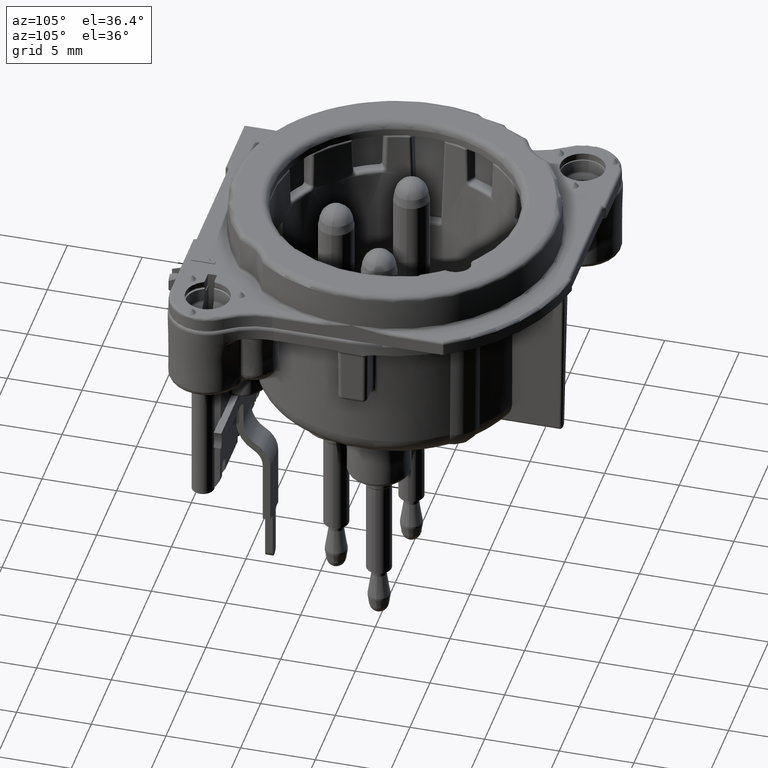
[diagram: clean part render]
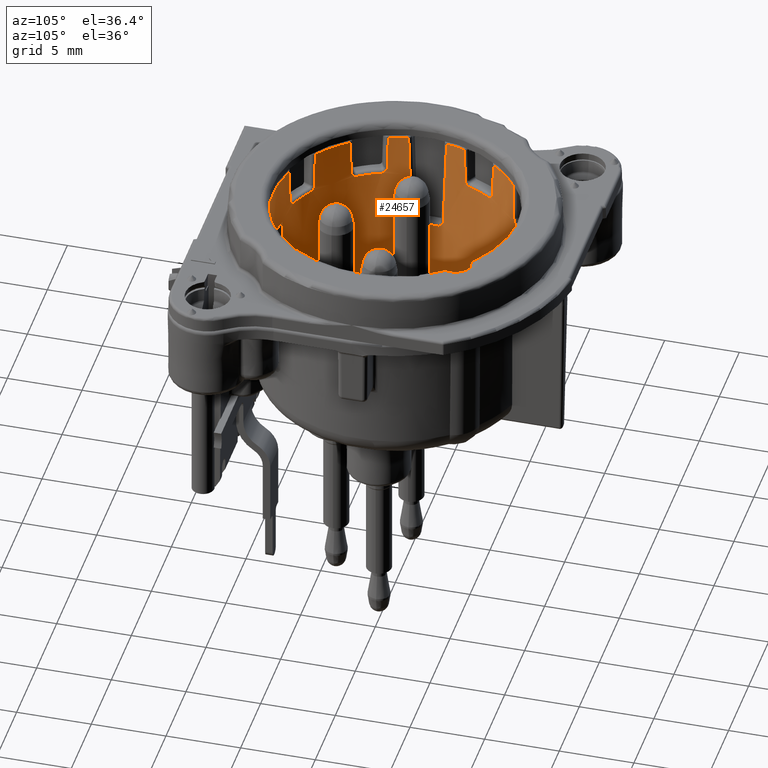
[diagram: same view with one face highlighted and labeled with its STEP entity id]
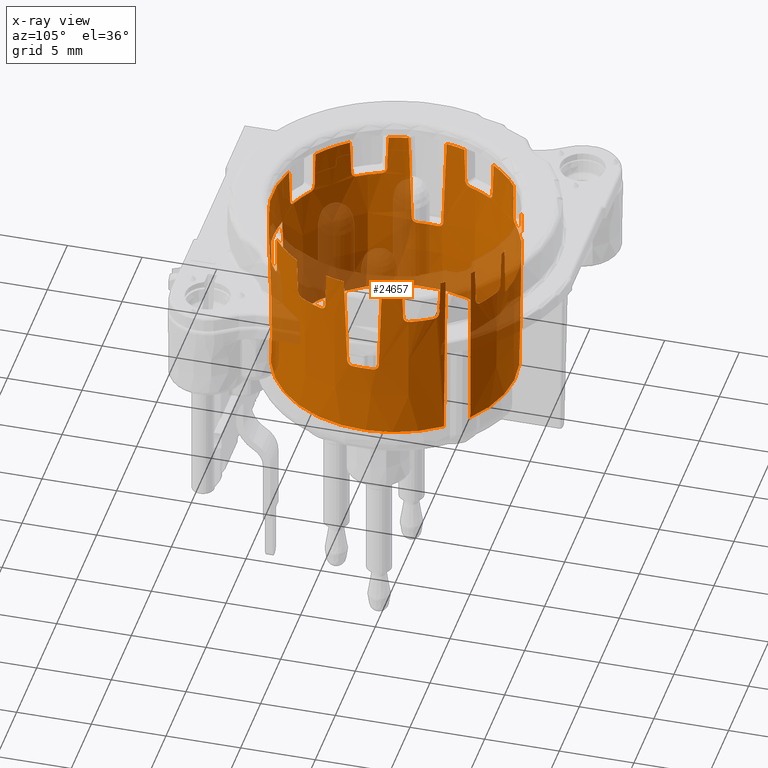
[diagram: x-ray of the same camera — body ghosted, the highlighted face saturated]
A machine part, auxiliary view. The second image highlights one B-rep face of the part: STEP entity #24657.
The next image is the same camera in x-ray: the body ghosted, the highlighted face saturated — about 28% of this face is hidden behind the body in this view.
In plain terms, the highlighted conical surface has half-angle 0.693 deg.
Its self-contained STEP definition (entity closure, byte-faithful):
#1759=CARTESIAN_POINT('',(-2.147726886727E0,7.911262696112E0,2.502419177844E0));
#1760=CARTESIAN_POINT('',(-2.134694089339E0,7.910019215594E0,2.120948605387E0));
#1761=CARTESIAN_POINT('',(-2.108898574287E0,7.907499021693E0,1.365884154310E0));
#1762=CARTESIAN_POINT('',(-2.072610928642E0,7.903804141712E0,
3.036291835128E-1));
#1763=CARTESIAN_POINT('',(-2.046831391397E0,7.901072924250E0,
-4.510701522131E-1));
#1764=CARTESIAN_POINT('',(-2.033810739779E0,7.899663537749E0,
-8.322668595602E-1));
#1766=CARTESIAN_POINT('',(-1.898556025941E0,7.932605817130E0,
-8.845588839907E-1));
#1767=CARTESIAN_POINT('',(-1.907208679409E0,7.930534927918E0,
-8.845588841260E-1));
#1768=CARTESIAN_POINT('',(-1.924159598136E0,7.926459312708E0,
-8.836292753028E-1));
#1769=CARTESIAN_POINT('',(-1.948189474690E0,7.920636378684E0,
-8.796253891082E-1));
#1770=CARTESIAN_POINT('',(-1.971832244942E0,7.914869179052E0,
-8.727308236144E-1));
#1771=CARTESIAN_POINT('',(-1.994551319258E0,7.909298957498E0,
-8.626449002430E-1));
#1772=CARTESIAN_POINT('',(-2.015519350140E0,7.904145672424E0,-8.493493612E-1));
#1773=CARTESIAN_POINT('',(-2.027968552373E0,7.901091816034E0,
-8.383395714053E-1));
#1774=CARTESIAN_POINT('',(-2.033810739779E0,7.899663537749E0,
-8.322668595602E-1));
#1776=CARTESIAN_POINT('',(2.033810804061E0,7.899663504605E0,
-8.322670087221E-1));
#1777=CARTESIAN_POINT('',(2.023434366130E0,7.902200216288E0,
-8.430561280678E-1));
#1778=CARTESIAN_POINT('',(1.999793097732E0,7.908014962790E0,
-8.615748253702E-1));
#1779=CARTESIAN_POINT('',(1.953825284455E0,7.919286031942E0,
-8.800355277777E-1));
#1780=CARTESIAN_POINT('',(1.917944996574E0,7.927965475956E0,
-8.845589410736E-1));
#1781=CARTESIAN_POINT('',(1.898539349430E0,7.932609899843E0,
-8.845589353372E-1));
#1783=CARTESIAN_POINT('',(2.033810804061E0,7.899663504605E0,
-8.322670087221E-1));
#1784=CARTESIAN_POINT('',(2.045689070542E0,7.900949236471E0,
-4.845151281118E-1));
#1785=CARTESIAN_POINT('',(2.069954194419E0,7.903527040888E0,2.258558710230E-1));
#1786=CARTESIAN_POINT('',(2.107014863392E0,7.907312838518E0,1.310744444218E0));
#1787=CARTESIAN_POINT('',(2.133890609803E0,7.909942554302E0,2.097430722971E0));
#1788=CARTESIAN_POINT('',(2.147726886722E0,7.911262696113E0,2.502419177844E0));
#1790=CARTESIAN_POINT('',(0.E0,0.E0,2.502419177844E0));
#1791=DIRECTION('',(0.E0,0.E0,-1.E0));
#1792=DIRECTION('',(2.619942776560E-1,9.650694267645E-1,0.E0));
#1793=AXIS2_PLACEMENT_3D('',#1790,#1791,#1792);
#1795=CARTESIAN_POINT('',(2.545933810107E0,7.792241606971E0,2.502419177844E0));
#1796=CARTESIAN_POINT('',(2.553251600004E0,7.786437326815E0,2.234201134450E0));
#1797=CARTESIAN_POINT('',(2.567873795898E0,7.774803583908E0,1.697765235502E0));
#1798=CARTESIAN_POINT('',(2.589766924048E0,7.757277472040E0,8.931119670170E-1));
#1799=CARTESIAN_POINT('',(2.604335382427E0,7.745542583367E0,3.566768443266E-1));
#1800=CARTESIAN_POINT('',(2.611612922869E0,7.739662603503E0,8.845938115901E-2));
#1802=CARTESIAN_POINT('',(2.611612922869E0,7.739662603503E0,8.845938115901E-2));
#1803=CARTESIAN_POINT('',(2.612771253261E0,7.738731255657E0,4.584584097996E-2));
#1804=CARTESIAN_POINT('',(2.627062462001E0,7.732894720726E0,
-3.438043262711E-2));
#1805=CARTESIAN_POINT('',(2.682220674508E0,7.712609206271E0,
-1.446261602898E-1));
#1806=CARTESIAN_POINT('',(2.765092957734E0,7.682287249914E0,
-2.305231254094E-1));
#1807=CARTESIAN_POINT('',(2.867774145682E0,7.643906519099E0,
-2.850834877480E-1));
#1808=CARTESIAN_POINT('',(2.940618989534E0,7.615846375258E0,
-2.975747206637E-1));
#1809=CARTESIAN_POINT('',(2.978839268172E0,7.600864769385E0,
-2.975808185416E-1));
#1811=CARTESIAN_POINT('',(0.E0,0.E0,-2.975808221563E-1));
#1812=DIRECTION('',(0.E0,0.E0,-1.E0));
#1813=DIRECTION('',(3.648866528597E-1,9.310519483707E-1,0.E0));
#1814=AXIS2_PLACEMENT_3D('',#1811,#1812,#1813);
#1816=CARTESIAN_POINT('',(4.398310779262E0,6.877607494120E0,
-2.975808140342E-1));
#1817=CARTESIAN_POINT('',(4.432788413489E0,6.855561132234E0,
-2.975754770384E-1));
#1818=CARTESIAN_POINT('',(4.498154726370E0,6.813223884880E0,
-2.851610027624E-1));
#1819=CARTESIAN_POINT('',(4.589536944159E0,6.752731401375E0,
-2.307721621353E-1));
#1820=CARTESIAN_POINT('',(4.662889131557E0,6.703437109890E0,
-1.448936974875E-1));
#1821=CARTESIAN_POINT('',(4.711767961166E0,6.670701909830E0,
-3.482875689446E-2));
#1822=CARTESIAN_POINT('',(4.725009677085E0,6.662492391517E0,4.565792522044E-2));
#1823=CARTESIAN_POINT('',(4.726451189648E0,6.662099017854E0,8.845937761382E-2));
#1825=CARTESIAN_POINT('',(4.726451189648E0,6.662099017854E0,8.845937761382E-2));
#1826=CARTESIAN_POINT('',(4.735485824229E0,6.659667529407E0,3.566768407809E-1));
#1827=CARTESIAN_POINT('',(4.753542419191E0,6.654778634947E0,8.931119686703E-1));
#1828=CARTESIAN_POINT('',(4.780589903458E0,6.647368458979E0,1.697765235028E0));
#1829=CARTESIAN_POINT('',(4.798596487154E0,6.642376963920E0,2.234201134449E0));
#1830=CARTESIAN_POINT('',(4.807593537421E0,6.639868417808E0,2.502419177844E0));
#1832=CARTESIAN_POINT('',(0.E0,0.E0,2.502419177844E0));
#1833=DIRECTION('',(0.E0,0.E0,-1.E0));
#1834=DIRECTION('',(5.864628337465E-1,8.099761383115E-1,0.E0));
#1835=AXIS2_PLACEMENT_3D('',#1832,#1833,#1834);
#1837=CARTESIAN_POINT('',(5.094379557597E0,6.422468773765E0,2.502419177844E0));
#1838=CARTESIAN_POINT('',(5.080125640220E0,6.415851990915E0,1.341612753502E0));
#1839=CARTESIAN_POINT('',(5.051119973441E0,6.401562506679E0,-1.072437425410E0));
#1840=CARTESIAN_POINT('',(5.006914166096E0,6.377012307001E0,-4.927301738467E0));
#1841=CARTESIAN_POINT('',(4.976237337337E0,6.357818877387E0,-7.740118584790E0));
#1842=CARTESIAN_POINT('',(4.960760106353E0,6.347501459823E0,-9.2E0));
#1844=CARTESIAN_POINT('',(4.960726346600E0,6.347434990904E0,-9.206047944609E0));
#1845=CARTESIAN_POINT('',(4.960726724299E0,6.347445012193E0,-9.205375987104E0));
#1846=CARTESIAN_POINT('',(4.960729728542E0,6.347463297586E0,-9.204032047591E0));
#1847=CARTESIAN_POINT('',(4.960740981780E0,6.347485454256E0,-9.202016042411E0));
#1848=CARTESIAN_POINT('',(4.960752981798E0,6.347496710459E0,-9.200672019816E0));
#1849=CARTESIAN_POINT('',(4.960760106353E0,6.347501459823E0,-9.2E0));
#1851=CARTESIAN_POINT('',(0.E0,0.E0,-9.206047944609E0));
#1852=DIRECTION('',(0.E0,0.E0,1.E0));
#1853=DIRECTION('',(6.157822246395E-1,7.879163990031E-1,0.E0));
#1854=AXIS2_PLACEMENT_3D('',#1851,#1852,#1853);
#1856=CARTESIAN_POINT('',(-1.618557764709E0,-7.994246285671E0,
-9.000000000709E-1));
#1857=CARTESIAN_POINT('',(-1.691058861642E0,-7.945395355699E0,
-3.668705189266E0));
#1858=CARTESIAN_POINT('',(-1.763559379617E0,-7.895321972788E0,
-6.437388268981E0));
#1859=CARTESIAN_POINT('',(-1.836059284737E0,-7.843954560843E0,
-9.206047944680E0));
#1861=CARTESIAN_POINT('',(0.E0,0.E0,-9.E-1));
#1862=DIRECTION('',(0.E0,0.E0,-1.E0));
#1863=DIRECTION('',(7.583662529537E-2,-9.971202566711E-1,0.E0));
#1864=AXIS2_PLACEMENT_3D('',#1861,#1862,#1863);
#1866=CARTESIAN_POINT('',(8.360592847335E-1,-8.012474132375E0,
-9.206047944552E0));
#1867=CARTESIAN_POINT('',(7.635591865009E-1,-8.053712907659E0,
-6.437380894166E0));
#1868=CARTESIAN_POINT('',(6.910586737785E-1,-8.093859979784E0,
-3.668698015055E0));
#1869=CARTESIAN_POINT('',(6.185577647061E-1,-8.132963125781E0,
-8.999999999433E-1));
#1871=CARTESIAN_POINT('',(0.E0,0.E0,-9.206047944610E0));
#1872=DIRECTION('',(0.E0,0.E0,1.E0));
#1873=DIRECTION('',(1.037812631284E-1,-9.946001454974E-1,0.E0));
#1874=AXIS2_PLACEMENT_3D('',#1871,#1872,#1873);
#1876=CARTESIAN_POINT('',(6.347501459823E0,4.960760106353E0,-9.2E0));
#1877=CARTESIAN_POINT('',(6.347496710459E0,4.960752981798E0,-9.200672019816E0));
#1878=CARTESIAN_POINT('',(6.347485454256E0,4.960740981780E0,-9.202016042411E0));
#1879=CARTESIAN_POINT('',(6.347463297586E0,4.960729728542E0,-9.204032047591E0));
#1880=CARTESIAN_POINT('',(6.347445012193E0,4.960726724299E0,-9.205375987104E0));
#1881=CARTESIAN_POINT('',(6.347434990904E0,4.960726346600E0,-9.206047944609E0));
#1883=CARTESIAN_POINT('',(6.347501459823E0,4.960760106353E0,-9.2E0));
#1884=CARTESIAN_POINT('',(6.357801075945E0,4.976210633267E0,-7.742637431683E0));
#1885=CARTESIAN_POINT('',(6.376974304347E0,5.006848856516E0,-4.933107222854E0));
#1886=CARTESIAN_POINT('',(6.401565247393E0,5.051123049960E0,-1.072103583633E0));
#1887=CARTESIAN_POINT('',(6.415852981862E0,5.080127774923E0,1.341786598876E0));
#1888=CARTESIAN_POINT('',(6.422468773765E0,5.094379557597E0,2.502419177844E0));
#1890=CARTESIAN_POINT('',(0.E0,0.E0,2.502419177844E0));
#1891=DIRECTION('',(0.E0,0.E0,-1.E0));
#1892=DIRECTION('',(7.834562567307E-1,6.214469356184E-1,0.E0));
#1893=AXIS2_PLACEMENT_3D('',#1890,#1891,#1892);
#1895=CARTESIAN_POINT('',(6.639868417808E0,4.807593537421E0,2.502419177844E0));
#1896=CARTESIAN_POINT('',(6.642376963920E0,4.798596487154E0,2.234201134450E0));
#1897=CARTESIAN_POINT('',(6.647368425805E0,4.780589879921E0,1.697765235510E0));
#1898=CARTESIAN_POINT('',(6.654778751056E0,4.753542501568E0,8.931119669876E-1));
#1899=CARTESIAN_POINT('',(6.659667280602E0,4.735485647706E0,3.566768443896E-1));
#1900=CARTESIAN_POINT('',(6.662098769049E0,4.726451013125E0,8.845938122207E-2));
#1902=CARTESIAN_POINT('',(6.662098769049E0,4.726451013125E0,8.845938122207E-2));
#1903=CARTESIAN_POINT('',(6.662488743218E0,4.725015456171E0,4.580865138475E-2));
#1904=CARTESIAN_POINT('',(6.670630825665E0,4.711876793615E0,
-3.448230604724E-2));
#1905=CARTESIAN_POINT('',(6.703408664796E0,4.662930963373E0,
-1.448767235566E-1));
#1906=CARTESIAN_POINT('',(6.752725475809E0,4.589545140812E0,
-2.307279435654E-1));
#1907=CARTESIAN_POINT('',(6.813033816398E0,4.498443559529E0,
-2.850417089225E-1));
#1908=CARTESIAN_POINT('',(6.855481798564E0,4.432913905169E0,
-2.975747619227E-1));
#1909=CARTESIAN_POINT('',(6.877607767284E0,4.398310953836E0,
-2.975808179629E-1));
#1911=CARTESIAN_POINT('',(0.E0,0.E0,-2.975808221563E-1));
#1912=DIRECTION('',(0.E0,0.E0,-1.E0));
#1913=DIRECTION('',(8.424581075545E-1,5.387618555685E-1,0.E0));
#1914=AXIS2_PLACEMENT_3D('',#1911,#1912,#1913);
#1916=CARTESIAN_POINT('',(7.600864421837E0,2.978839131853E0,
-2.975808140182E-1));
#1917=CARTESIAN_POINT('',(7.615805858459E0,2.940720013455E0,
-2.975754749215E-1));
#1918=CARTESIAN_POINT('',(7.643813225852E0,2.868020774958E0,
-2.851580673613E-1));
#1919=CARTESIAN_POINT('',(7.682220824253E0,2.765272830999E0,
-2.306725212345E-1));
#1920=CARTESIAN_POINT('',(7.712552265881E0,2.682378012648E0,
-1.448093769167E-1));
#1921=CARTESIAN_POINT('',(7.732831651496E0,2.627227624035E0,
-3.488176005874E-2));
#1922=CARTESIAN_POINT('',(7.738727367740E0,2.612779461730E0,4.563099901178E-2));
#1923=CARTESIAN_POINT('',(7.739662910258E0,2.611613026371E0,8.845937732906E-2));
#1925=CARTESIAN_POINT('',(7.739662910258E0,2.611613026371E0,8.845937732906E-2));
#1926=CARTESIAN_POINT('',(7.745542890122E0,2.604335485930E0,3.566768404964E-1));
#1927=CARTESIAN_POINT('',(7.757277328887E0,2.589766875747E0,8.931119688037E-1));
#1928=CARTESIAN_POINT('',(7.774803624809E0,2.567873809699E0,1.697765234991E0));
#1929=CARTESIAN_POINT('',(7.786437326815E0,2.553251600003E0,2.234201134450E0));
#1930=CARTESIAN_POINT('',(7.792241606971E0,2.545933810107E0,2.502419177844E0));
#1932=CARTESIAN_POINT('',(0.E0,0.E0,2.502419177844E0));
#1933=DIRECTION('',(0.E0,0.E0,-1.E0));
#1934=DIRECTION('',(9.505504278785E-1,3.105702562383E-1,0.E0));
#1935=AXIS2_PLACEMENT_3D('',#1932,#1933,#1934);
#1937=CARTESIAN_POINT('',(8.098767872619E0,1.269160026284E0,2.502419177844E0));
#1938=CARTESIAN_POINT('',(8.093930452087E0,1.245213390168E0,1.800866056617E0));
#1939=CARTESIAN_POINT('',(8.084060657524E0,1.197323504965E0,3.977610896523E-1));
#1940=CARTESIAN_POINT('',(8.068668452234E0,1.125498981115E0,-1.706892204036E0));
#1941=CARTESIAN_POINT('',(8.058012627174E0,1.077622816301E0,-3.109991641873E0));
#1942=CARTESIAN_POINT('',(8.052585886777E0,1.053686504068E0,-3.811540617819E0));
#1944=CARTESIAN_POINT('',(8.052585886777E0,1.053686504068E0,-3.811540617819E0));
#1945=CARTESIAN_POINT('',(8.052258355570E0,1.052228685041E0,-3.854265073380E0));
#1946=CARTESIAN_POINT('',(8.053309210601E0,1.036781627958E0,-3.934662527170E0));
#1947=CARTESIAN_POINT('',(8.059373158011E0,9.781777612739E-1,
-4.045111335414E0));
#1948=CARTESIAN_POINT('',(8.068599518514E0,8.903632723252E-1,
-4.130872424324E0));
#1949=CARTESIAN_POINT('',(8.079227237415E0,7.819226383011E-1,
-4.185067175866E0));
#1950=CARTESIAN_POINT('',(8.086048552232E0,7.043501408536E-1,
-4.197574630369E0));
#1951=CARTESIAN_POINT('',(8.089394149348E0,6.635284342692E-1,
-4.197580819728E0));
#1953=CARTESIAN_POINT('',(0.E0,0.E0,-4.197580822156E0));
#1954=DIRECTION('',(0.E0,0.E0,-1.E0));
#1955=DIRECTION('',(9.966528716866E-1,8.174994409044E-2,0.E0));
#1956=AXIS2_PLACEMENT_3D('',#1953,#1954,#1955);
#1958=CARTESIAN_POINT('',(8.089393813243E0,-6.635284067943E-1,
-4.197580815644E0));
#1959=CARTESIAN_POINT('',(8.086060139477E0,-7.041992618674E-1,
-4.197575347022E0));
#1960=CARTESIAN_POINT('',(8.079260670582E0,-7.815716548301E-1,
-4.185189781263E0));
#1961=CARTESIAN_POINT('',(8.068600396555E0,-8.903585560817E-1,
-4.130912603008E0));
#1962=CARTESIAN_POINT('',(8.059379000628E0,-9.781245362251E-1,
-4.045133233320E0));
#1963=CARTESIAN_POINT('',(8.053320436668E0,-1.036659275949E0,
-3.934992597143E0));
#1964=CARTESIAN_POINT('',(8.052258857534E0,-1.052222178114E0,
-3.854408738283E0));
#1965=CARTESIAN_POINT('',(8.052586165740E0,-1.053686540577E0,
-3.811540621148E0));
#1967=CARTESIAN_POINT('',(8.052586165740E0,-1.053686540577E0,
-3.811540621148E0));
#1968=CARTESIAN_POINT('',(8.058012906138E0,-1.077622852809E0,
-3.109991645205E0));
#1969=CARTESIAN_POINT('',(8.068668322051E0,-1.125498964077E0,
-1.706892202488E0));
#1970=CARTESIAN_POINT('',(8.084060694719E0,-1.197323509832E0,
3.977610892020E-1));
#1971=CARTESIAN_POINT('',(8.093930452087E0,-1.245213390168E0,1.800866056614E0));
#1972=CARTESIAN_POINT('',(8.098767872619E0,-1.269160026284E0,2.502419177844E0));
#1974=CARTESIAN_POINT('',(0.E0,0.E0,2.502419177844E0));
#1975=DIRECTION('',(0.E0,0.E0,-1.E0));
#1976=DIRECTION('',(9.879425786437E-1,-1.548207392530E-1,0.E0));
#1977=AXIS2_PLACEMENT_3D('',#1974,#1975,#1976);
#1979=CARTESIAN_POINT('',(7.792241606971E0,-2.545933810107E0,2.502419177844E0));
#1980=CARTESIAN_POINT('',(7.786437326815E0,-2.553251600003E0,2.234201134449E0));
#1981=CARTESIAN_POINT('',(7.774803582759E0,-2.567873795511E0,1.697765235514E0));
#1982=CARTESIAN_POINT('',(7.757277476062E0,-2.589766925406E0,
8.931119669651E-1));
#1983=CARTESIAN_POINT('',(7.745542574747E0,-2.604335379518E0,
3.566768444337E-1));
#1984=CARTESIAN_POINT('',(7.739662594883E0,-2.611612919960E0,
8.845938126682E-2));
#1986=CARTESIAN_POINT('',(7.739662594883E0,-2.611612919960E0,
8.845938126682E-2));
#1987=CARTESIAN_POINT('',(7.738730914836E0,-2.612771574915E0,
4.583136596409E-2));
#1988=CARTESIAN_POINT('',(7.732890844932E0,-2.627071790777E0,
-3.443019791685E-2));
#1989=CARTESIAN_POINT('',(7.712577504055E0,-2.682308245501E0,
-1.447960506442E-1));
#1990=CARTESIAN_POINT('',(7.682176260436E0,-2.765392580719E0,
-2.307275308780E-1));
#1991=CARTESIAN_POINT('',(7.643924046427E0,-2.867725632391E0,
-2.850347828392E-1));
#1992=CARTESIAN_POINT('',(7.615855658219E0,-2.940595101212E0,
-2.975747502273E-1));
#1993=CARTESIAN_POINT('',(7.600864727584E0,-2.978839251784E0,
-2.975808179983E-1));
#1995=CARTESIAN_POINT('',(0.E0,0.E0,-2.975808221563E-1));
#1996=DIRECTION('',(0.E0,0.E0,-1.E0));
#1997=DIRECTION('',(9.310519483707E-1,-3.648866528597E-1,0.E0));
#1998=AXIS2_PLACEMENT_3D('',#1995,#1996,#1997);
#2000=CARTESIAN_POINT('',(6.877607494120E0,-4.398310779262E0,
-2.975808140342E-1));
#2001=CARTESIAN_POINT('',(6.855561132234E0,-4.432788413489E0,
-2.975754770384E-1));
#2002=CARTESIAN_POINT('',(6.813223884881E0,-4.498154726370E0,
-2.851610027625E-1));
#2003=CARTESIAN_POINT('',(6.752731401376E0,-4.589536944158E0,
-2.307721621359E-1));
#2004=CARTESIAN_POINT('',(6.703437109890E0,-4.662889131557E0,
-1.448936974879E-1));
#2005=CARTESIAN_POINT('',(6.670701909830E0,-4.711767961166E0,
-3.482875689437E-2));
#2006=CARTESIAN_POINT('',(6.662492391517E0,-4.725009677085E0,
4.565792522050E-2));
#2007=CARTESIAN_POINT('',(6.662099017854E0,-4.726451189648E0,
8.845937761382E-2));
#2009=CARTESIAN_POINT('',(6.662099017854E0,-4.726451189648E0,
8.845937761382E-2));
#2010=CARTESIAN_POINT('',(6.659667529407E0,-4.735485824229E0,
3.566768407807E-1));
#2011=CARTESIAN_POINT('',(6.654778634947E0,-4.753542419191E0,
8.931119686698E-1));
#2012=CARTESIAN_POINT('',(6.647368458980E0,-4.780589903457E0,1.697765235027E0));
#2013=CARTESIAN_POINT('',(6.642376963919E0,-4.798596487155E0,2.234201134449E0));
#2014=CARTESIAN_POINT('',(6.639868417807E0,-4.807593537422E0,2.502419177844E0));
#2016=CARTESIAN_POINT('',(0.E0,0.E0,2.502419177844E0));
#2017=DIRECTION('',(0.E0,0.E0,-1.E0));
#2018=DIRECTION('',(8.099761383115E-1,-5.864628337465E-1,0.E0));
#2019=AXIS2_PLACEMENT_3D('',#2016,#2017,#2018);
#2021=CARTESIAN_POINT('',(4.807593537422E0,-6.639868417807E0,2.502419177844E0));
#2022=CARTESIAN_POINT('',(4.798596487156E0,-6.642376963919E0,2.234201134449E0));
#2023=CARTESIAN_POINT('',(4.780589879939E0,-6.647368425832E0,1.697765235508E0));
#2024=CARTESIAN_POINT('',(4.753542501504E0,-6.654778750964E0,
8.931119669876E-1));
#2025=CARTESIAN_POINT('',(4.735485647845E0,-6.659667280798E0,
3.566768443862E-1));
#2026=CARTESIAN_POINT('',(4.726451013264E0,-6.662098769245E0,
8.845938121923E-2));
#2028=CARTESIAN_POINT('',(4.726451013264E0,-6.662098769245E0,
8.845938121923E-2));
#2029=CARTESIAN_POINT('',(4.725015432664E0,-6.662488751185E0,
4.580796368537E-2));
#2030=CARTESIAN_POINT('',(4.711876422643E0,-6.670631066533E0,
-3.448383899811E-2));
#2031=CARTESIAN_POINT('',(4.662930024112E0,-6.703409298564E0,
-1.448780458508E-1));
#2032=CARTESIAN_POINT('',(4.589545301436E0,-6.752725362771E0,
-2.307274552816E-1));
#2033=CARTESIAN_POINT('',(4.498445442871E0,-6.813032577468E0,
-2.850409697393E-1));
#2034=CARTESIAN_POINT('',(4.432914765267E0,-6.855481255653E0,
-2.975747564514E-1));
#2035=CARTESIAN_POINT('',(4.398310955243E0,-6.877607769485E0,
-2.975808179945E-1));
#2037=CARTESIAN_POINT('',(0.E0,0.E0,-2.975808221563E-1));
#2038=DIRECTION('',(0.E0,0.E0,-1.E0));
#2039=DIRECTION('',(5.387618555685E-1,-8.424581075545E-1,0.E0));
#2040=AXIS2_PLACEMENT_3D('',#2037,#2038,#2039);
#2042=CARTESIAN_POINT('',(2.978839132334E0,-7.600864423066E0,
-2.975808140342E-1));
#2043=CARTESIAN_POINT('',(2.940737805971E0,-7.615798888698E0,
-2.975754770384E-1));
#2044=CARTESIAN_POINT('',(2.868064898659E0,-7.643796137061E0,
-2.851610027623E-1));
#2045=CARTESIAN_POINT('',(2.765412331534E0,-7.682169314557E0,
-2.307721621351E-1));
#2046=CARTESIAN_POINT('',(2.682417078020E0,-7.712538023179E0,
-1.448936974869E-1));
#2047=CARTESIAN_POINT('',(2.627203489665E0,-7.732840559172E0,
-3.482875689410E-2));
#2048=CARTESIAN_POINT('',(2.612778564501E0,-7.738727898592E0,
4.565792522059E-2));
#2049=CARTESIAN_POINT('',(2.611613018698E0,-7.739662887515E0,
8.845937761382E-2));
#2051=CARTESIAN_POINT('',(2.611613018698E0,-7.739662887515E0,
8.845937761382E-2));
#2052=CARTESIAN_POINT('',(2.604335478256E0,-7.745542867379E0,
3.566768407811E-1));
#2053=CARTESIAN_POINT('',(2.589766879328E0,-7.757277339500E0,
8.931119686708E-1));
#2054=CARTESIAN_POINT('',(2.567873808676E0,-7.774803621777E0,1.697765235029E0));
#2055=CARTESIAN_POINT('',(2.553251600003E0,-7.786437326816E0,2.234201134450E0));
#2056=CARTESIAN_POINT('',(2.545933810106E0,-7.792241606971E0,2.502419177844E0));
#2058=CARTESIAN_POINT('',(0.E0,0.E0,2.502419177844E0));
#2059=DIRECTION('',(0.E0,0.E0,-1.E0));
#2060=DIRECTION('',(3.105702562383E-1,-9.505504278785E-1,0.E0));
#2061=AXIS2_PLACEMENT_3D('',#2058,#2059,#2060);
#2063=CARTESIAN_POINT('',(-2.545933810107E0,-7.792241606971E0,
2.502419177844E0));
#2064=CARTESIAN_POINT('',(-2.553251600003E0,-7.786437326815E0,
2.234201134450E0));
#2065=CARTESIAN_POINT('',(-2.567873795672E0,-7.774803583236E0,
1.697765235510E0));
#2066=CARTESIAN_POINT('',(-2.589766924842E0,-7.757277474392E0,
8.931119669873E-1));
#2067=CARTESIAN_POINT('',(-2.604335380726E0,-7.745542578326E0,
3.566768443895E-1));
#2068=CARTESIAN_POINT('',(-2.611612921168E0,-7.739662598462E0,
8.845938122207E-2));
#2070=CARTESIAN_POINT('',(-2.611612921168E0,-7.739662598462E0,
8.845938122207E-2));
#2071=CARTESIAN_POINT('',(-2.612772216104E0,-7.738730429555E0,
4.580865138479E-2));
#2072=CARTESIAN_POINT('',(-2.627082011258E0,-7.732886824249E0,
-3.448230604717E-2));
#2073=CARTESIAN_POINT('',(-2.682369477331E0,-7.712555146223E0,
-1.448767235562E-1));
#2074=CARTESIAN_POINT('',(-2.765402719778E0,-7.682172462828E0,
-2.307279435656E-1));
#2075=CARTESIAN_POINT('',(-2.867741358156E0,-7.643918088544E0,
-2.850417089224E-1));
#2076=CARTESIAN_POINT('',(-2.940599861526E0,-7.615853782438E0,
-2.975747619227E-1));
#2077=CARTESIAN_POINT('',(-2.978839250717E0,-7.600864724861E0,
-2.975808179629E-1));
#2079=CARTESIAN_POINT('',(0.E0,0.E0,-2.975808221563E-1));
#2080=DIRECTION('',(0.E0,0.E0,-1.E0));
#2081=DIRECTION('',(-3.648866528597E-1,-9.310519483707E-1,0.E0));
#2082=AXIS2_PLACEMENT_3D('',#2079,#2080,#2081);
#2084=CARTESIAN_POINT('',(-4.398310779262E0,-6.877607494120E0,
-2.975808140342E-1));
#2085=CARTESIAN_POINT('',(-4.432788413489E0,-6.855561132234E0,
-2.975754770384E-1));
#2086=CARTESIAN_POINT('',(-4.498154726368E0,-6.813223884882E0,
-2.851610027632E-1));
#2087=CARTESIAN_POINT('',(-4.589536944158E0,-6.752731401376E0,
-2.307721621359E-1));
#2088=CARTESIAN_POINT('',(-4.662889131557E0,-6.703437109890E0,
-1.448936974875E-1));
#2089=CARTESIAN_POINT('',(-4.711767961166E0,-6.670701909830E0,
-3.482875689447E-2));
#2090=CARTESIAN_POINT('',(-4.725009677085E0,-6.662492391517E0,
4.565792522046E-2));
#2091=CARTESIAN_POINT('',(-4.726451189648E0,-6.662099017854E0,
8.845937761382E-2));
#2093=CARTESIAN_POINT('',(-4.726451189648E0,-6.662099017854E0,
8.845937761382E-2));
#2094=CARTESIAN_POINT('',(-4.735485824229E0,-6.659667529407E0,
3.566768407812E-1));
#2095=CARTESIAN_POINT('',(-4.753542419191E0,-6.654778634947E0,
8.931119686710E-1));
#2096=CARTESIAN_POINT('',(-4.780589903457E0,-6.647368458980E0,
1.697765235029E0));
#2097=CARTESIAN_POINT('',(-4.798596487155E0,-6.642376963919E0,
2.234201134450E0));
#2098=CARTESIAN_POINT('',(-4.807593537422E0,-6.639868417807E0,
2.502419177844E0));
#2100=CARTESIAN_POINT('',(0.E0,0.E0,2.502419177844E0));
#2101=DIRECTION('',(0.E0,0.E0,-1.E0));
#2102=DIRECTION('',(-5.864628337465E-1,-8.099761383115E-1,0.E0));
#2103=AXIS2_PLACEMENT_3D('',#2100,#2101,#2102);
#2105=CARTESIAN_POINT('',(-6.639868417807E0,-4.807593537422E0,
2.502419177844E0));
#2106=CARTESIAN_POINT('',(-6.642376963919E0,-4.798596487156E0,
2.234201134450E0));
#2107=CARTESIAN_POINT('',(-6.647368425806E0,-4.780589879921E0,
1.697765235510E0));
#2108=CARTESIAN_POINT('',(-6.654778751056E0,-4.753542501568E0,
8.931119669872E-1));
#2109=CARTESIAN_POINT('',(-6.659667280602E0,-4.735485647706E0,
3.566768443894E-1));
#2110=CARTESIAN_POINT('',(-6.662098769049E0,-4.726451013125E0,
8.845938122207E-2));
#2112=CARTESIAN_POINT('',(-6.662098769049E0,-4.726451013125E0,
8.845938122207E-2));
#2113=CARTESIAN_POINT('',(-6.662488743218E0,-4.725015456171E0,
4.580865138479E-2));
#2114=CARTESIAN_POINT('',(-6.670630825665E0,-4.711876793615E0,
-3.448230604714E-2));
#2115=CARTESIAN_POINT('',(-6.703408664795E0,-4.662930963373E0,
-1.448767235562E-1));
#2116=CARTESIAN_POINT('',(-6.752725475809E0,-4.589545140812E0,
-2.307279435653E-1));
#2117=CARTESIAN_POINT('',(-6.813033816398E0,-4.498443559529E0,
-2.850417089223E-1));
#2118=CARTESIAN_POINT('',(-6.855481798564E0,-4.432913905169E0,
-2.975747619227E-1));
#2119=CARTESIAN_POINT('',(-6.877607767284E0,-4.398310953836E0,
-2.975808179629E-1));
#2121=CARTESIAN_POINT('',(0.E0,0.E0,-2.975808221563E-1));
#2122=DIRECTION('',(0.E0,0.E0,-1.E0));
#2123=DIRECTION('',(-8.424581075545E-1,-5.387618555685E-1,0.E0));
#2124=AXIS2_PLACEMENT_3D('',#2121,#2122,#2123);
#2126=CARTESIAN_POINT('',(-7.600864423066E0,-2.978839132334E0,
-2.975808140342E-1));
#2127=CARTESIAN_POINT('',(-7.615798888698E0,-2.940737805971E0,
-2.975754770384E-1));
#2128=CARTESIAN_POINT('',(-7.643796137061E0,-2.868064898659E0,
-2.851610027621E-1));
#2129=CARTESIAN_POINT('',(-7.682169314557E0,-2.765412331535E0,
-2.307721621356E-1));
#2130=CARTESIAN_POINT('',(-7.712538023179E0,-2.682417078020E0,
-1.448936974871E-1));
#2131=CARTESIAN_POINT('',(-7.732840559172E0,-2.627203489665E0,
-3.482875689423E-2));
#2132=CARTESIAN_POINT('',(-7.738727898592E0,-2.612778564501E0,
4.565792522056E-2));
#2133=CARTESIAN_POINT('',(-7.739662887515E0,-2.611613018698E0,
8.845937761382E-2));
#2135=CARTESIAN_POINT('',(-7.739662887515E0,-2.611613018698E0,
8.845937761382E-2));
#2136=CARTESIAN_POINT('',(-7.745542867379E0,-2.604335478256E0,
3.566768407807E-1));
#2137=CARTESIAN_POINT('',(-7.757277339500E0,-2.589766879328E0,
8.931119686698E-1));
#2138=CARTESIAN_POINT('',(-7.774803621777E0,-2.567873808676E0,
1.697765235027E0));
#2139=CARTESIAN_POINT('',(-7.786437326816E0,-2.553251600003E0,
2.234201134449E0));
#2140=CARTESIAN_POINT('',(-7.792241606971E0,-2.545933810106E0,
2.502419177844E0));
#2142=CARTESIAN_POINT('',(0.E0,0.E0,2.502419177844E0));
#2143=DIRECTION('',(0.E0,0.E0,-1.E0));
#2144=DIRECTION('',(-9.505504278785E-1,-3.105702562383E-1,0.E0));
#2145=AXIS2_PLACEMENT_3D('',#2142,#2143,#2144);
#2147=CARTESIAN_POINT('',(-8.098767872619E0,-1.269160026284E0,
2.502419177844E0));
#2148=CARTESIAN_POINT('',(-8.093930452087E0,-1.245213390168E0,
1.800866056617E0));
#2149=CARTESIAN_POINT('',(-8.084060658135E0,-1.197323505045E0,
3.977610896445E-1));
#2150=CARTESIAN_POINT('',(-8.068668450096E0,-1.125498980835E0,
-1.706892204010E0));
#2151=CARTESIAN_POINT('',(-8.058012631756E0,-1.077622816901E0,
-3.109991641928E0));
#2152=CARTESIAN_POINT('',(-8.052585891359E0,-1.053686504668E0,
-3.811540617874E0));
#2154=CARTESIAN_POINT('',(-8.052585891359E0,-1.053686504668E0,
-3.811540617874E0));
#2155=CARTESIAN_POINT('',(-8.052258702903E0,-1.052230061691E0,
-3.854223725880E0));
#2156=CARTESIAN_POINT('',(-8.053307276754E0,-1.036807158570E0,
-3.934549733634E0));
#2157=CARTESIAN_POINT('',(-8.059356082702E0,-9.783364179721E-1,
-4.044855850637E0));
#2158=CARTESIAN_POINT('',(-8.068563671719E0,-8.907184931080E-1,
-4.130649266283E0));
#2159=CARTESIAN_POINT('',(-8.079231874819E0,-7.818824415213E-1,
-4.185113853011E0));
#2160=CARTESIAN_POINT('',(-8.086050512916E0,-7.043271901608E-1,
-4.197574598049E0));
#2161=CARTESIAN_POINT('',(-8.089394198518E0,-6.635284382894E-1,
-4.197580820325E0));
#2163=CARTESIAN_POINT('',(0.E0,0.E0,-4.197580822156E0));
#2164=DIRECTION('',(0.E0,0.E0,-1.E0));
#2165=DIRECTION('',(-9.966528716866E-1,-8.174994409042E-2,0.E0));
#2166=AXIS2_PLACEMENT_3D('',#2163,#2164,#2165);
#2168=CARTESIAN_POINT('',(-8.089393813243E0,6.635284067927E-1,
-4.197580815644E0));
#2169=CARTESIAN_POINT('',(-8.086060139477E0,7.041992618657E-1,
-4.197575347022E0));
#2170=CARTESIAN_POINT('',(-8.079260670582E0,7.815716548306E-1,
-4.185189781263E0));
#2171=CARTESIAN_POINT('',(-8.068600396555E0,8.903585560816E-1,
-4.130912603008E0));
#2172=CARTESIAN_POINT('',(-8.059379000628E0,9.781245362248E-1,
-4.045133233321E0));
#2173=CARTESIAN_POINT('',(-8.053320436668E0,1.036659275949E0,
-3.934992597143E0));
#2174=CARTESIAN_POINT('',(-8.052258857534E0,1.052222178114E0,
-3.854408738283E0));
#2175=CARTESIAN_POINT('',(-8.052586165740E0,1.053686540577E0,
-3.811540621148E0));
#2177=CARTESIAN_POINT('',(-8.052586165740E0,1.053686540577E0,
-3.811540621148E0));
#2178=CARTESIAN_POINT('',(-8.058012906138E0,1.077622852809E0,
-3.109991645205E0));
#2179=CARTESIAN_POINT('',(-8.068668322051E0,1.125498964077E0,
-1.706892202488E0));
#2180=CARTESIAN_POINT('',(-8.084060694719E0,1.197323509832E0,
3.977610892020E-1));
#2181=CARTESIAN_POINT('',(-8.093930452087E0,1.245213390168E0,1.800866056614E0));
#2182=CARTESIAN_POINT('',(-8.098767872619E0,1.269160026284E0,2.502419177844E0));
#2184=CARTESIAN_POINT('',(0.E0,0.E0,2.502419177844E0));
#2185=DIRECTION('',(0.E0,0.E0,-1.E0));
#2186=DIRECTION('',(-9.879425786437E-1,1.548207392530E-1,0.E0));
#2187=AXIS2_PLACEMENT_3D('',#2184,#2185,#2186);
#2189=CARTESIAN_POINT('',(-7.792241606971E0,2.545933810107E0,2.502419177844E0));
#2190=CARTESIAN_POINT('',(-7.786437326815E0,2.553251600004E0,2.234201134450E0));
#2191=CARTESIAN_POINT('',(-7.774803583236E0,2.567873795672E0,1.697765235510E0));
#2192=CARTESIAN_POINT('',(-7.757277474392E0,2.589766924842E0,
8.931119669876E-1));
#2193=CARTESIAN_POINT('',(-7.745542578326E0,2.604335380726E0,
3.566768443896E-1));
#2194=CARTESIAN_POINT('',(-7.739662598462E0,2.611612921168E0,
8.845938122207E-2));
#2196=CARTESIAN_POINT('',(-7.739662598462E0,2.611612921168E0,
8.845938122207E-2));
#2197=CARTESIAN_POINT('',(-7.738730429555E0,2.612772216104E0,
4.580865138465E-2));
#2198=CARTESIAN_POINT('',(-7.732886824249E0,2.627082011258E0,
-3.448230604743E-2));
#2199=CARTESIAN_POINT('',(-7.712555146222E0,2.682369477331E0,
-1.448767235564E-1));
#2200=CARTESIAN_POINT('',(-7.682172462828E0,2.765402719778E0,
-2.307279435651E-1));
#2201=CARTESIAN_POINT('',(-7.643918088544E0,2.867741358156E0,
-2.850417089224E-1));
#2202=CARTESIAN_POINT('',(-7.615853782438E0,2.940599861526E0,
-2.975747619227E-1));
#2203=CARTESIAN_POINT('',(-7.600864724861E0,2.978839250716E0,
-2.975808179628E-1));
#2205=CARTESIAN_POINT('',(0.E0,0.E0,-2.975808221563E-1));
#2206=DIRECTION('',(0.E0,0.E0,-1.E0));
#2207=DIRECTION('',(-9.310519483707E-1,3.648866528597E-1,0.E0));
#2208=AXIS2_PLACEMENT_3D('',#2205,#2206,#2207);
#2210=CARTESIAN_POINT('',(-6.877607653270E0,4.398310881012E0,
-2.975808163244E-1));
#2211=CARTESIAN_POINT('',(-6.855505196964E0,4.432876761346E0,
-2.975750002459E-1));
#2212=CARTESIAN_POINT('',(-6.813089385273E0,4.498359088116E0,
-2.850712258449E-1));
#2213=CARTESIAN_POINT('',(-6.752741806615E0,4.589520734317E0,
-2.307693502907E-1));
#2214=CARTESIAN_POINT('',(-6.703409139694E0,4.662930948442E0,
-1.448384226301E-1));
#2215=CARTESIAN_POINT('',(-6.670703399807E0,4.711765891736E0,
-3.481387121776E-2));
#2216=CARTESIAN_POINT('',(-6.662492298549E0,4.725009905175E0,
4.566425269252E-2));
#2217=CARTESIAN_POINT('',(-6.662099013232E0,4.726451186368E0,
8.845937768111E-2));
#2219=CARTESIAN_POINT('',(-6.662099013232E0,4.726451186368E0,
8.845937768111E-2));
#2220=CARTESIAN_POINT('',(-6.659667524785E0,4.735485820949E0,
3.566768408480E-1));
#2221=CARTESIAN_POINT('',(-6.654778637104E0,4.753542420721E0,
8.931119686385E-1));
#2222=CARTESIAN_POINT('',(-6.647368458363E0,4.780589903020E0,1.697765235037E0));
#2223=CARTESIAN_POINT('',(-6.642376963919E0,4.798596487155E0,2.234201134449E0));
#2224=CARTESIAN_POINT('',(-6.639868417807E0,4.807593537421E0,2.502419177844E0));
#2226=CARTESIAN_POINT('',(0.E0,0.E0,2.502419177844E0));
#2227=DIRECTION('',(0.E0,0.E0,-1.E0));
#2228=DIRECTION('',(-8.099761383115E-1,5.864628337465E-1,0.E0));
#2229=AXIS2_PLACEMENT_3D('',#2226,#2227,#2228);
#2231=CARTESIAN_POINT('',(-4.807593537422E0,6.639868417807E0,2.502419177844E0));
#2232=CARTESIAN_POINT('',(-4.798596487156E0,6.642376963919E0,2.234201134449E0));
#2233=CARTESIAN_POINT('',(-4.780589879921E0,6.647368425806E0,1.697765235509E0));
#2234=CARTESIAN_POINT('',(-4.753542501568E0,6.654778751056E0,
8.931119669869E-1));
#2235=CARTESIAN_POINT('',(-4.735485647706E0,6.659667280602E0,
3.566768443893E-1));
#2236=CARTESIAN_POINT('',(-4.726451013125E0,6.662098769049E0,
8.845938122207E-2));
#2238=CARTESIAN_POINT('',(-4.726451013125E0,6.662098769049E0,
8.845938122207E-2));
#2239=CARTESIAN_POINT('',(-4.725015456171E0,6.662488743218E0,
4.580865138484E-2));
#2240=CARTESIAN_POINT('',(-4.711876793615E0,6.670630825665E0,
-3.448230604701E-2));
#2241=CARTESIAN_POINT('',(-4.662930963373E0,6.703408664795E0,
-1.448767235561E-1));
#2242=CARTESIAN_POINT('',(-4.589545140812E0,6.752725475809E0,
-2.307279435653E-1));
#2243=CARTESIAN_POINT('',(-4.498443559529E0,6.813033816398E0,
-2.850417089225E-1));
#2244=CARTESIAN_POINT('',(-4.432913905169E0,6.855481798564E0,
-2.975747619227E-1));
#2245=CARTESIAN_POINT('',(-4.398310953836E0,6.877607767284E0,
-2.975808179629E-1));
#2247=CARTESIAN_POINT('',(0.E0,0.E0,-2.975808221563E-1));
#2248=DIRECTION('',(0.E0,0.E0,-1.E0));
#2249=DIRECTION('',(-5.387618555685E-1,8.424581075545E-1,0.E0));
#2250=AXIS2_PLACEMENT_3D('',#2247,#2248,#2249);
#2252=CARTESIAN_POINT('',(-2.978839130731E0,7.600864418976E0,
-2.975808139809E-1));
#2253=CARTESIAN_POINT('',(-2.940774600130E0,7.615784452663E0,
-2.975754920117E-1));
#2254=CARTESIAN_POINT('',(-2.868169375956E0,7.643756182718E0,
-2.851933095859E-1));
#2255=CARTESIAN_POINT('',(-2.765581273550E0,7.682106794304E0,
-2.308608970141E-1));
#2256=CARTESIAN_POINT('',(-2.682669296307E0,7.712445812011E0,
-1.452891264535E-1));
#2257=CARTESIAN_POINT('',(-2.627120428576E0,7.732870598667E0,
-3.470516158828E-2));
#2258=CARTESIAN_POINT('',(-2.612777613600E0,7.738729405591E0,
4.571620950814E-2));
#2259=CARTESIAN_POINT('',(-2.611613052272E0,7.739662987017E0,
8.845937636904E-2));
#2261=CARTESIAN_POINT('',(-2.611613052272E0,7.739662987017E0,
8.845937636904E-2));
#2262=CARTESIAN_POINT('',(-2.604335511830E0,7.745542966881E0,
3.566768395362E-1));
#2263=CARTESIAN_POINT('',(-2.589766863660E0,7.757277293066E0,
8.931119692513E-1));
#2264=CARTESIAN_POINT('',(-2.567873813152E0,7.774803635044E0,1.697765234862E0));
#2265=CARTESIAN_POINT('',(-2.553251600004E0,7.786437326815E0,2.234201134449E0));
#2266=CARTESIAN_POINT('',(-2.545933810107E0,7.792241606971E0,2.502419177844E0));
#2268=CARTESIAN_POINT('',(0.E0,0.E0,2.502419177844E0));
#2269=DIRECTION('',(0.E0,0.E0,-1.E0));
#2270=DIRECTION('',(-3.105702562383E-1,9.505504278785E-1,0.E0));
#2271=AXIS2_PLACEMENT_3D('',#2268,#2269,#2270);
#2293=CARTESIAN_POINT('',(0.E0,-8.393286066166E-14,-8.845588827424E-1));
#2294=DIRECTION('',(0.E0,0.E0,1.E0));
#2295=DIRECTION('',(2.327599686550E-1,9.725342137898E-1,0.E0));
#2296=AXIS2_PLACEMENT_3D('',#2293,#2294,#2295);
#2347=CARTESIAN_POINT('',(-2.033810739779E0,7.899663537749E0,
-8.322668595602E-1));
#19549=CARTESIAN_POINT('',(6.185577647076E-1,-8.132963125783E0,-9.E-1));
#19550=CARTESIAN_POINT('',(-1.618557764708E0,-7.994246285669E0,-9.E-1));
#19551=VERTEX_POINT('',#19549);
#19552=VERTEX_POINT('',#19550);
#20523=CARTESIAN_POINT('',(4.960726346600E0,6.347434990904E0,
-9.206047944609E0));
#20524=CARTESIAN_POINT('',(-1.836059284735E0,-7.843954560841E0,
-9.206047944609E0));
#20525=VERTEX_POINT('',#20523);
#20526=VERTEX_POINT('',#20524);
#20531=VERTEX_POINT('',#1849);
#20532=CARTESIAN_POINT('',(6.347501459823E0,4.960760106353E0,-9.2E0));
#20533=VERTEX_POINT('',#20532);
#20534=VERTEX_POINT('',#1881);
#20539=CARTESIAN_POINT('',(8.360592847350E-1,-8.012474132377E0,
-9.206047944610E0));
#20540=VERTEX_POINT('',#20539);
#20959=VERTEX_POINT('',#2347);
#20968=VERTEX_POINT('',#1759);
#20970=CARTESIAN_POINT('',(-2.545933810107E0,7.792241606970E0,
2.502419177844E0));
#20971=VERTEX_POINT('',#20970);
#20974=VERTEX_POINT('',#2261);
#20976=VERTEX_POINT('',#2252);
#20979=CARTESIAN_POINT('',(-4.398311140590E0,6.877608059367E0,
-2.975808221563E-1));
#20980=VERTEX_POINT('',#20979);
#20982=VERTEX_POINT('',#2238);
#20984=VERTEX_POINT('',#2231);
#20985=CARTESIAN_POINT('',(-6.639868417807E0,4.807593537421E0,
2.502419177844E0));
#20986=VERTEX_POINT('',#20985);
#20989=VERTEX_POINT('',#2219);
#20991=VERTEX_POINT('',#2210);
#20994=CARTESIAN_POINT('',(-7.600865047629E0,2.978839377245E0,
-2.975808221563E-1));
#20995=VERTEX_POINT('',#20994);
#20997=VERTEX_POINT('',#2196);
#20999=VERTEX_POINT('',#2189);
#21000=CARTESIAN_POINT('',(-8.098767872617E0,1.269160026283E0,
2.502419177844E0));
#21001=VERTEX_POINT('',#21000);
#21004=VERTEX_POINT('',#2177);
#21006=VERTEX_POINT('',#2168);
#21009=CARTESIAN_POINT('',(-8.089394349434E0,-6.635284506555E-1,
-4.197580822156E0));
#21010=VERTEX_POINT('',#21009);
#21012=VERTEX_POINT('',#2154);
#21014=VERTEX_POINT('',#2147);
#21015=CARTESIAN_POINT('',(-4.807593537421E0,-6.639868417807E0,
2.502419177844E0));
#21016=CARTESIAN_POINT('',(-6.639868417807E0,-4.807593537421E0,
2.502419177844E0));
#21017=VERTEX_POINT('',#21015);
#21018=VERTEX_POINT('',#21016);
#21021=VERTEX_POINT('',#1825);
#21022=VERTEX_POINT('',#1830);
#21024=VERTEX_POINT('',#1816);
#21027=CARTESIAN_POINT('',(2.978839377245E0,7.600865047629E0,
-2.975808221563E-1));
#21028=VERTEX_POINT('',#21027);
#21030=VERTEX_POINT('',#1802);
#21032=VERTEX_POINT('',#1795);
#21033=CARTESIAN_POINT('',(-7.792241606970E0,-2.545933810107E0,
2.502419177844E0));
#21034=VERTEX_POINT('',#21033);
#21037=VERTEX_POINT('',#1783);
#21038=VERTEX_POINT('',#1788);
#21039=VERTEX_POINT('',#1837);
#21040=CARTESIAN_POINT('',(6.422468773765E0,5.094379557597E0,2.502419177844E0));
#21041=CARTESIAN_POINT('',(6.639868417807E0,4.807593537421E0,2.502419177844E0));
#21042=VERTEX_POINT('',#21040);
#21043=VERTEX_POINT('',#21041);
#21046=VERTEX_POINT('',#1900);
#21048=VERTEX_POINT('',#1909);
#21051=CARTESIAN_POINT('',(7.600865047629E0,2.978839377245E0,
-2.975808221563E-1));
#21052=VERTEX_POINT('',#21051);
#21054=VERTEX_POINT('',#1923);
#21056=VERTEX_POINT('',#1930);
#21057=CARTESIAN_POINT('',(8.098767872617E0,1.269160026283E0,2.502419177844E0));
#21058=VERTEX_POINT('',#21057);
#21061=VERTEX_POINT('',#1942);
#21063=VERTEX_POINT('',#1951);
#21066=CARTESIAN_POINT('',(8.089394349434E0,-6.635284506557E-1,
-4.197580822156E0));
#21067=VERTEX_POINT('',#21066);
#21069=VERTEX_POINT('',#1965);
#21071=VERTEX_POINT('',#1972);
#21072=CARTESIAN_POINT('',(7.792241606970E0,-2.545933810107E0,
2.502419177844E0));
#21073=VERTEX_POINT('',#21072);
#21076=VERTEX_POINT('',#1984);
#21078=VERTEX_POINT('',#1993);
#21081=CARTESIAN_POINT('',(6.877608059367E0,-4.398311140590E0,
-2.975808221563E-1));
#21082=VERTEX_POINT('',#21081);
#21084=VERTEX_POINT('',#2007);
#21086=VERTEX_POINT('',#2014);
#21087=CARTESIAN_POINT('',(4.807593537421E0,-6.639868417807E0,
2.502419177844E0));
#21088=VERTEX_POINT('',#21087);
#21091=VERTEX_POINT('',#2026);
#21093=VERTEX_POINT('',#2035);
#21096=CARTESIAN_POINT('',(2.978839377245E0,-7.600865047629E0,
-2.975808221563E-1));
#21097=VERTEX_POINT('',#21096);
#21099=VERTEX_POINT('',#2049);
#21101=VERTEX_POINT('',#2056);
#21102=CARTESIAN_POINT('',(-2.545933810107E0,-7.792241606970E0,
2.502419177844E0));
#21103=VERTEX_POINT('',#21102);
#21106=VERTEX_POINT('',#2068);
#21108=VERTEX_POINT('',#2077);
#21111=CARTESIAN_POINT('',(-4.398311140590E0,-6.877608059367E0,
-2.975808221563E-1));
#21112=VERTEX_POINT('',#21111);
#21114=VERTEX_POINT('',#2091);
#21118=VERTEX_POINT('',#2110);
#21120=VERTEX_POINT('',#2119);
#21123=CARTESIAN_POINT('',(-7.600865047629E0,-2.978839377245E0,
-2.975808221563E-1));
#21124=VERTEX_POINT('',#21123);
#21126=VERTEX_POINT('',#2133);
#21128=CARTESIAN_POINT('',(1.898538898457E0,7.932609914107E0,
-8.845588827424E-1));
#21129=CARTESIAN_POINT('',(-1.898556002713E0,7.932605820467E0,
-8.845588827424E-1));
#21130=VERTEX_POINT('',#21128);
#21131=VERTEX_POINT('',#21129);
#24504=CARTESIAN_POINT('',(0.E0,0.E0,-3.351814383383E0));
#24505=DIRECTION('',(0.E0,0.E0,1.E0));
#24506=DIRECTION('',(0.E0,1.E0,0.E0));
#24507=AXIS2_PLACEMENT_3D('',#24504,#24505,#24506);
#24508=CONICAL_SURFACE('',#24507,8.126792567943E0,6.930603027112E-1);
#24510=ORIENTED_EDGE('',*,*,#24509,.T.);
#24512=ORIENTED_EDGE('',*,*,#24511,.F.);
#24514=ORIENTED_EDGE('',*,*,#24513,.F.);
#24516=ORIENTED_EDGE('',*,*,#24515,.F.);
#24518=ORIENTED_EDGE('',*,*,#24517,.T.);
#24520=ORIENTED_EDGE('',*,*,#24519,.T.);
#24522=ORIENTED_EDGE('',*,*,#24521,.T.);
#24524=ORIENTED_EDGE('',*,*,#24523,.T.);
#24526=ORIENTED_EDGE('',*,*,#24525,.T.);
#24528=ORIENTED_EDGE('',*,*,#24527,.T.);
#24530=ORIENTED_EDGE('',*,*,#24529,.T.);
#24531=ORIENTED_EDGE('',*,*,#24497,.T.);
#24532=ORIENTED_EDGE('',*,*,#24479,.T.);
#24534=ORIENTED_EDGE('',*,*,#24533,.F.);
#24536=ORIENTED_EDGE('',*,*,#24535,.T.);
#24538=ORIENTED_EDGE('',*,*,#24537,.F.);
#24540=ORIENTED_EDGE('',*,*,#24539,.F.);
#24541=ORIENTED_EDGE('',*,*,#22804,.F.);
#24543=ORIENTED_EDGE('',*,*,#24542,.T.);
#24545=ORIENTED_EDGE('',*,*,#24544,.F.);
#24546=ORIENTED_EDGE('',*,*,#24475,.T.);
#24548=ORIENTED_EDGE('',*,*,#24547,.T.);
#24550=ORIENTED_EDGE('',*,*,#24549,.T.);
#24552=ORIENTED_EDGE('',*,*,#24551,.T.);
#24554=ORIENTED_EDGE('',*,*,#24553,.T.);
#24556=ORIENTED_EDGE('',*,*,#24555,.T.);
#24558=ORIENTED_EDGE('',*,*,#24557,.T.);
#24560=ORIENTED_EDGE('',*,*,#24559,.T.);
#24561=ORIENTED_EDGE('',*,*,#22298,.T.);
#24563=ORIENTED_EDGE('',*,*,#24562,.T.);
#24565=ORIENTED_EDGE('',*,*,#24564,.T.);
#24567=ORIENTED_EDGE('',*,*,#24566,.T.);
#24569=ORIENTED_EDGE('',*,*,#24568,.T.);
#24571=ORIENTED_EDGE('',*,*,#24570,.T.);
#24573=ORIENTED_EDGE('',*,*,#24572,.T.);
#24575=ORIENTED_EDGE('',*,*,#24574,.T.);
#24577=ORIENTED_EDGE('',*,*,#24576,.T.);
#24579=ORIENTED_EDGE('',*,*,#24578,.T.);
#24581=ORIENTED_EDGE('',*,*,#24580,.T.);
#24583=ORIENTED_EDGE('',*,*,#24582,.T.);
#24585=ORIENTED_EDGE('',*,*,#24584,.T.);
#24587=ORIENTED_EDGE('',*,*,#24586,.T.);
#24589=ORIENTED_EDGE('',*,*,#24588,.T.);
#24591=ORIENTED_EDGE('',*,*,#24590,.T.);
#24593=ORIENTED_EDGE('',*,*,#24592,.T.);
#24595=ORIENTED_EDGE('',*,*,#24594,.T.);
#24597=ORIENTED_EDGE('',*,*,#24596,.T.);
#24599=ORIENTED_EDGE('',*,*,#24598,.T.);
#24601=ORIENTED_EDGE('',*,*,#24600,.T.);
#24603=ORIENTED_EDGE('',*,*,#24602,.T.);
#24605=ORIENTED_EDGE('',*,*,#24604,.T.);
#24607=ORIENTED_EDGE('',*,*,#24606,.T.);
#24609=ORIENTED_EDGE('',*,*,#24608,.T.);
#24611=ORIENTED_EDGE('',*,*,#24610,.T.);
#24613=ORIENTED_EDGE('',*,*,#24612,.T.);
#24615=ORIENTED_EDGE('',*,*,#24614,.T.);
#24617=ORIENTED_EDGE('',*,*,#24616,.T.);
#24619=ORIENTED_EDGE('',*,*,#24618,.T.);
#24621=ORIENTED_EDGE('',*,*,#24620,.T.);
#24623=ORIENTED_EDGE('',*,*,#24622,.T.);
#24625=ORIENTED_EDGE('',*,*,#24624,.T.);
#24627=ORIENTED_EDGE('',*,*,#24626,.T.);
#24628=ORIENTED_EDGE('',*,*,#22372,.T.);
#24630=ORIENTED_EDGE('',*,*,#24629,.T.);
#24632=ORIENTED_EDGE('',*,*,#24631,.T.);
#24634=ORIENTED_EDGE('',*,*,#24633,.T.);
#24636=ORIENTED_EDGE('',*,*,#24635,.T.);
#24638=ORIENTED_EDGE('',*,*,#24637,.T.);
#24640=ORIENTED_EDGE('',*,*,#24639,.T.);
#24642=ORIENTED_EDGE('',*,*,#24641,.T.);
#24644=ORIENTED_EDGE('',*,*,#24643,.T.);
#24646=ORIENTED_EDGE('',*,*,#24645,.T.);
#24648=ORIENTED_EDGE('',*,*,#24647,.T.);
#24650=ORIENTED_EDGE('',*,*,#24649,.T.);
#24652=ORIENTED_EDGE('',*,*,#24651,.T.);
#24654=ORIENTED_EDGE('',*,*,#24653,.T.);
#24655=EDGE_LOOP('',(#24510,#24512,#24514,#24516,#24518,#24520,#24522,#24524,
#24526,#24528,#24530,#24531,#24532,#24534,#24536,#24538,#24540,#24541,#24543,
#24545,#24546,#24548,#24550,#24552,#24554,#24556,#24558,#24560,#24561,#24563,
#24565,#24567,#24569,#24571,#24573,#24575,#24577,#24579,#24581,#24583,#24585,
#24587,#24589,#24591,#24593,#24595,#24597,#24599,#24601,#24603,#24605,#24607,
#24609,#24611,#24613,#24615,#24617,#24619,#24621,#24623,#24625,#24627,#24628,
#24630,#24632,#24634,#24636,#24638,#24640,#24642,#24644,#24646,#24648,#24650,
#24652,#24654));
#24656=FACE_OUTER_BOUND('',#24655,.F.);
#24657=ADVANCED_FACE('',(#24656),#24508,.F.);
#1765=B_SPLINE_CURVE_WITH_KNOTS('',3,(#1759,#1760,#1761,#1762,#1763,#1764),
.UNSPECIFIED.,.F.,.F.,(4,1,1,4),(0.E0,3.333333333333E-1,6.666666666667E-1,1.E0),
.UNSPECIFIED.);
#1775=B_SPLINE_CURVE_WITH_KNOTS('',3,(#1766,#1767,#1768,#1769,#1770,#1771,#1772,
#1773,#1774),.UNSPECIFIED.,.F.,.F.,(4,1,1,1,1,1,4),(0.E0,1.666666666667E-1,
3.333333333333E-1,5.E-1,6.666666666667E-1,8.333333333333E-1,1.E0),
.UNSPECIFIED.);
#1782=B_SPLINE_CURVE_WITH_KNOTS('',3,(#1776,#1777,#1778,#1779,#1780,#1781),
.UNSPECIFIED.,.F.,.F.,(4,1,1,4),(0.E0,3.333333333333E-1,6.666666666667E-1,1.E0),
.UNSPECIFIED.);
#1789=B_SPLINE_CURVE_WITH_KNOTS('',3,(#1783,#1784,#1785,#1786,#1787,#1788),
.UNSPECIFIED.,.F.,.F.,(4,1,1,4),(0.E0,3.333333333333E-1,6.666666666667E-1,1.E0),
.UNSPECIFIED.);
#1794=CIRCLE('',#1793,8.197609909409E0);
#1801=B_SPLINE_CURVE_WITH_KNOTS('',3,(#1795,#1796,#1797,#1798,#1799,#1800),
.UNSPECIFIED.,.F.,.F.,(4,1,1,4),(0.E0,3.333333333333E-1,6.666666666667E-1,1.E0),
.UNSPECIFIED.);
#1810=B_SPLINE_CURVE_WITH_KNOTS('',3,(#1802,#1803,#1804,#1805,#1806,#1807,#1808,
#1809),.UNSPECIFIED.,.F.,.F.,(4,1,1,1,1,4),(0.E0,2.E-1,4.E-1,6.E-1,8.E-1,1.E0),
.UNSPECIFIED.);
#1815=CIRCLE('',#1814,8.163738941667E0);
#1824=B_SPLINE_CURVE_WITH_KNOTS('',3,(#1816,#1817,#1818,#1819,#1820,#1821,#1822,
#1823),.UNSPECIFIED.,.F.,.F.,(4,1,1,1,1,4),(0.E0,2.E-1,4.E-1,6.E-1,8.E-1,1.E0),
.UNSPECIFIED.);
#1831=B_SPLINE_CURVE_WITH_KNOTS('',3,(#1825,#1826,#1827,#1828,#1829,#1830),
.UNSPECIFIED.,.F.,.F.,(4,1,1,4),(0.E0,3.333333333333E-1,6.666666666667E-1,1.E0),
.UNSPECIFIED.);
#1836=CIRCLE('',#1835,8.197609909409E0);
#1843=B_SPLINE_CURVE_WITH_KNOTS('',3,(#1837,#1838,#1839,#1840,#1841,#1842),
.UNSPECIFIED.,.F.,.F.,(4,1,1,4),(0.E0,3.333333333333E-1,6.666666666667E-1,1.E0),
.UNSPECIFIED.);
#1850=B_SPLINE_CURVE_WITH_KNOTS('',3,(#1844,#1845,#1846,#1847,#1848,#1849),
.UNSPECIFIED.,.T.,.F.,(4,1,1,4),(0.E0,3.333333333333E-1,6.666666666667E-1,1.E0),
.UNSPECIFIED.);
#1855=CIRCLE('',#1854,8.055975226477E0);
#1860=B_SPLINE_CURVE_WITH_KNOTS('',3,(#1856,#1857,#1858,#1859),.UNSPECIFIED.,
.F.,.F.,(4,4),(0.E0,1.E0),.UNSPECIFIED.);
#1865=CIRCLE('',#1864,8.156451612903E0);
#1870=B_SPLINE_CURVE_WITH_KNOTS('',3,(#1866,#1867,#1868,#1869),.UNSPECIFIED.,
.F.,.F.,(4,4),(0.E0,1.E0),.UNSPECIFIED.);
#1875=CIRCLE('',#1874,8.055975226476E0);
#1882=B_SPLINE_CURVE_WITH_KNOTS('',3,(#1876,#1877,#1878,#1879,#1880,#1881),
.UNSPECIFIED.,.T.,.F.,(4,1,1,4),(0.E0,3.333333333333E-1,6.666666666667E-1,1.E0),
.UNSPECIFIED.);
#1889=B_SPLINE_CURVE_WITH_KNOTS('',3,(#1883,#1884,#1885,#1886,#1887,#1888),
.UNSPECIFIED.,.F.,.F.,(4,1,1,4),(0.E0,3.333333333333E-1,6.666666666667E-1,1.E0),
.UNSPECIFIED.);
#1894=CIRCLE('',#1893,8.197609909409E0);
#1901=B_SPLINE_CURVE_WITH_KNOTS('',3,(#1895,#1896,#1897,#1898,#1899,#1900),
.UNSPECIFIED.,.F.,.F.,(4,1,1,4),(0.E0,3.333333333333E-1,6.666666666667E-1,1.E0),
.UNSPECIFIED.);
#1910=B_SPLINE_CURVE_WITH_KNOTS('',3,(#1902,#1903,#1904,#1905,#1906,#1907,#1908,
#1909),.UNSPECIFIED.,.F.,.F.,(4,1,1,1,1,4),(0.E0,2.E-1,4.E-1,6.E-1,8.E-1,1.E0),
.UNSPECIFIED.);
#1915=CIRCLE('',#1914,8.163738941667E0);
#1924=B_SPLINE_CURVE_WITH_KNOTS('',3,(#1916,#1917,#1918,#1919,#1920,#1921,#1922,
#1923),.UNSPECIFIED.,.F.,.F.,(4,1,1,1,1,4),(0.E0,2.E-1,4.E-1,6.E-1,8.E-1,1.E0),
.UNSPECIFIED.);
#1931=B_SPLINE_CURVE_WITH_KNOTS('',3,(#1925,#1926,#1927,#1928,#1929,#1930),
.UNSPECIFIED.,.F.,.F.,(4,1,1,4),(0.E0,3.333333333333E-1,6.666666666667E-1,1.E0),
.UNSPECIFIED.);
#1936=CIRCLE('',#1935,8.197609909409E0);
#1943=B_SPLINE_CURVE_WITH_KNOTS('',3,(#1937,#1938,#1939,#1940,#1941,#1942),
.UNSPECIFIED.,.F.,.F.,(4,1,1,4),(0.E0,3.333333333333E-1,6.666666666667E-1,1.E0),
.UNSPECIFIED.);
#1952=B_SPLINE_CURVE_WITH_KNOTS('',3,(#1944,#1945,#1946,#1947,#1948,#1949,#1950,
#1951),.UNSPECIFIED.,.F.,.F.,(4,1,1,1,1,4),(0.E0,2.E-1,4.E-1,6.E-1,8.E-1,1.E0),
.UNSPECIFIED.);
#1957=CIRCLE('',#1956,8.116561522313E0);
#1966=B_SPLINE_CURVE_WITH_KNOTS('',3,(#1958,#1959,#1960,#1961,#1962,#1963,#1964,
#1965),.UNSPECIFIED.,.F.,.F.,(4,1,1,1,1,4),(0.E0,2.E-1,4.E-1,6.E-1,8.E-1,1.E0),
.UNSPECIFIED.);
#1973=B_SPLINE_CURVE_WITH_KNOTS('',3,(#1967,#1968,#1969,#1970,#1971,#1972),
.UNSPECIFIED.,.F.,.F.,(4,1,1,4),(0.E0,3.333333333333E-1,6.666666666667E-1,1.E0),
.UNSPECIFIED.);
#1978=CIRCLE('',#1977,8.197609909409E0);
#1985=B_SPLINE_CURVE_WITH_KNOTS('',3,(#1979,#1980,#1981,#1982,#1983,#1984),
.UNSPECIFIED.,.F.,.F.,(4,1,1,4),(0.E0,3.333333333333E-1,6.666666666667E-1,1.E0),
.UNSPECIFIED.);
#1994=B_SPLINE_CURVE_WITH_KNOTS('',3,(#1986,#1987,#1988,#1989,#1990,#1991,#1992,
#1993),.UNSPECIFIED.,.F.,.F.,(4,1,1,1,1,4),(0.E0,2.E-1,4.E-1,6.E-1,8.E-1,1.E0),
.UNSPECIFIED.);
#1999=CIRCLE('',#1998,8.163738941667E0);
#2008=B_SPLINE_CURVE_WITH_KNOTS('',3,(#2000,#2001,#2002,#2003,#2004,#2005,#2006,
#2007),.UNSPECIFIED.,.F.,.F.,(4,1,1,1,1,4),(0.E0,2.E-1,4.E-1,6.E-1,8.E-1,1.E0),
.UNSPECIFIED.);
#2015=B_SPLINE_CURVE_WITH_KNOTS('',3,(#2009,#2010,#2011,#2012,#2013,#2014),
.UNSPECIFIED.,.F.,.F.,(4,1,1,4),(0.E0,3.333333333333E-1,6.666666666667E-1,1.E0),
.UNSPECIFIED.);
#2020=CIRCLE('',#2019,8.197609909409E0);
#2027=B_SPLINE_CURVE_WITH_KNOTS('',3,(#2021,#2022,#2023,#2024,#2025,#2026),
.UNSPECIFIED.,.F.,.F.,(4,1,1,4),(0.E0,3.333333333333E-1,6.666666666667E-1,1.E0),
.UNSPECIFIED.);
#2036=B_SPLINE_CURVE_WITH_KNOTS('',3,(#2028,#2029,#2030,#2031,#2032,#2033,#2034,
#2035),.UNSPECIFIED.,.F.,.F.,(4,1,1,1,1,4),(0.E0,2.E-1,4.E-1,6.E-1,8.E-1,1.E0),
.UNSPECIFIED.);
#2041=CIRCLE('',#2040,8.163738941667E0);
#2050=B_SPLINE_CURVE_WITH_KNOTS('',3,(#2042,#2043,#2044,#2045,#2046,#2047,#2048,
#2049),.UNSPECIFIED.,.F.,.F.,(4,1,1,1,1,4),(0.E0,2.E-1,4.E-1,6.E-1,8.E-1,1.E0),
.UNSPECIFIED.);
#2057=B_SPLINE_CURVE_WITH_KNOTS('',3,(#2051,#2052,#2053,#2054,#2055,#2056),
.UNSPECIFIED.,.F.,.F.,(4,1,1,4),(0.E0,3.333333333333E-1,6.666666666667E-1,1.E0),
.UNSPECIFIED.);
#2062=CIRCLE('',#2061,8.197609909409E0);
#2069=B_SPLINE_CURVE_WITH_KNOTS('',3,(#2063,#2064,#2065,#2066,#2067,#2068),
.UNSPECIFIED.,.F.,.F.,(4,1,1,4),(0.E0,3.333333333333E-1,6.666666666667E-1,1.E0),
.UNSPECIFIED.);
#2078=B_SPLINE_CURVE_WITH_KNOTS('',3,(#2070,#2071,#2072,#2073,#2074,#2075,#2076,
#2077),.UNSPECIFIED.,.F.,.F.,(4,1,1,1,1,4),(0.E0,2.E-1,4.E-1,6.E-1,8.E-1,1.E0),
.UNSPECIFIED.);
#2083=CIRCLE('',#2082,8.163738941667E0);
#2092=B_SPLINE_CURVE_WITH_KNOTS('',3,(#2084,#2085,#2086,#2087,#2088,#2089,#2090,
#2091),.UNSPECIFIED.,.F.,.F.,(4,1,1,1,1,4),(0.E0,2.E-1,4.E-1,6.E-1,8.E-1,1.E0),
.UNSPECIFIED.);
#2099=B_SPLINE_CURVE_WITH_KNOTS('',3,(#2093,#2094,#2095,#2096,#2097,#2098),
.UNSPECIFIED.,.F.,.F.,(4,1,1,4),(0.E0,3.333333333333E-1,6.666666666667E-1,1.E0),
.UNSPECIFIED.);
#2104=CIRCLE('',#2103,8.197609909409E0);
#2111=B_SPLINE_CURVE_WITH_KNOTS('',3,(#2105,#2106,#2107,#2108,#2109,#2110),
.UNSPECIFIED.,.F.,.F.,(4,1,1,4),(0.E0,3.333333333333E-1,6.666666666667E-1,1.E0),
.UNSPECIFIED.);
#2120=B_SPLINE_CURVE_WITH_KNOTS('',3,(#2112,#2113,#2114,#2115,#2116,#2117,#2118,
#2119),.UNSPECIFIED.,.F.,.F.,(4,1,1,1,1,4),(0.E0,2.E-1,4.E-1,6.E-1,8.E-1,1.E0),
.UNSPECIFIED.);
#2125=CIRCLE('',#2124,8.163738941667E0);
#2134=B_SPLINE_CURVE_WITH_KNOTS('',3,(#2126,#2127,#2128,#2129,#2130,#2131,#2132,
#2133),.UNSPECIFIED.,.F.,.F.,(4,1,1,1,1,4),(0.E0,2.E-1,4.E-1,6.E-1,8.E-1,1.E0),
.UNSPECIFIED.);
#2141=B_SPLINE_CURVE_WITH_KNOTS('',3,(#2135,#2136,#2137,#2138,#2139,#2140),
.UNSPECIFIED.,.F.,.F.,(4,1,1,4),(0.E0,3.333333333333E-1,6.666666666667E-1,1.E0),
.UNSPECIFIED.);
#2146=CIRCLE('',#2145,8.197609909409E0);
#2153=B_SPLINE_CURVE_WITH_KNOTS('',3,(#2147,#2148,#2149,#2150,#2151,#2152),
.UNSPECIFIED.,.F.,.F.,(4,1,1,4),(0.E0,3.333333333333E-1,6.666666666667E-1,1.E0),
.UNSPECIFIED.);
#2162=B_SPLINE_CURVE_WITH_KNOTS('',3,(#2154,#2155,#2156,#2157,#2158,#2159,#2160,
#2161),.UNSPECIFIED.,.F.,.F.,(4,1,1,1,1,4),(0.E0,2.E-1,4.E-1,6.E-1,8.E-1,1.E0),
.UNSPECIFIED.);
#2167=CIRCLE('',#2166,8.116561522313E0);
#2176=B_SPLINE_CURVE_WITH_KNOTS('',3,(#2168,#2169,#2170,#2171,#2172,#2173,#2174,
#2175),.UNSPECIFIED.,.F.,.F.,(4,1,1,1,1,4),(0.E0,2.E-1,4.E-1,6.E-1,8.E-1,1.E0),
.UNSPECIFIED.);
#2183=B_SPLINE_CURVE_WITH_KNOTS('',3,(#2177,#2178,#2179,#2180,#2181,#2182),
.UNSPECIFIED.,.F.,.F.,(4,1,1,4),(0.E0,3.333333333333E-1,6.666666666667E-1,1.E0),
.UNSPECIFIED.);
#2188=CIRCLE('',#2187,8.197609909409E0);
#2195=B_SPLINE_CURVE_WITH_KNOTS('',3,(#2189,#2190,#2191,#2192,#2193,#2194),
.UNSPECIFIED.,.F.,.F.,(4,1,1,4),(0.E0,3.333333333333E-1,6.666666666667E-1,1.E0),
.UNSPECIFIED.);
#2204=B_SPLINE_CURVE_WITH_KNOTS('',3,(#2196,#2197,#2198,#2199,#2200,#2201,#2202,
#2203),.UNSPECIFIED.,.F.,.F.,(4,1,1,1,1,4),(0.E0,2.E-1,4.E-1,6.E-1,8.E-1,1.E0),
.UNSPECIFIED.);
#2209=CIRCLE('',#2208,8.163738941667E0);
#2218=B_SPLINE_CURVE_WITH_KNOTS('',3,(#2210,#2211,#2212,#2213,#2214,#2215,#2216,
#2217),.UNSPECIFIED.,.F.,.F.,(4,1,1,1,1,4),(0.E0,2.E-1,4.E-1,6.E-1,8.E-1,1.E0),
.UNSPECIFIED.);
#2225=B_SPLINE_CURVE_WITH_KNOTS('',3,(#2219,#2220,#2221,#2222,#2223,#2224),
.UNSPECIFIED.,.F.,.F.,(4,1,1,4),(0.E0,3.333333333333E-1,6.666666666667E-1,1.E0),
.UNSPECIFIED.);
#2230=CIRCLE('',#2229,8.197609909409E0);
#2237=B_SPLINE_CURVE_WITH_KNOTS('',3,(#2231,#2232,#2233,#2234,#2235,#2236),
.UNSPECIFIED.,.F.,.F.,(4,1,1,4),(0.E0,3.333333333333E-1,6.666666666667E-1,1.E0),
.UNSPECIFIED.);
#2246=B_SPLINE_CURVE_WITH_KNOTS('',3,(#2238,#2239,#2240,#2241,#2242,#2243,#2244,
#2245),.UNSPECIFIED.,.F.,.F.,(4,1,1,1,1,4),(0.E0,2.E-1,4.E-1,6.E-1,8.E-1,1.E0),
.UNSPECIFIED.);
#2251=CIRCLE('',#2250,8.163738941667E0);
#2260=B_SPLINE_CURVE_WITH_KNOTS('',3,(#2252,#2253,#2254,#2255,#2256,#2257,#2258,
#2259),.UNSPECIFIED.,.F.,.F.,(4,1,1,1,1,4),(0.E0,2.E-1,4.E-1,6.E-1,8.E-1,1.E0),
.UNSPECIFIED.);
#2267=B_SPLINE_CURVE_WITH_KNOTS('',3,(#2261,#2262,#2263,#2264,#2265,#2266),
.UNSPECIFIED.,.F.,.F.,(4,1,1,4),(0.E0,3.333333333333E-1,6.666666666667E-1,1.E0),
.UNSPECIFIED.);
#2272=CIRCLE('',#2271,8.197609909409E0);
#2297=CIRCLE('',#2296,8.156638400612E0);
#22298=EDGE_CURVE('',#21058,#21061,#1943,.T.);
#22372=EDGE_CURVE('',#21004,#21001,#2183,.T.);
#22804=EDGE_CURVE('',#20540,#19551,#1870,.T.);
#24475=EDGE_CURVE('',#20533,#21042,#1889,.T.);
#24479=EDGE_CURVE('',#21039,#20531,#1843,.T.);
#24497=EDGE_CURVE('',#21022,#21039,#1836,.T.);
#24509=EDGE_CURVE('',#20968,#20959,#1765,.T.);
#24511=EDGE_CURVE('',#21131,#20959,#1775,.T.);
#24513=EDGE_CURVE('',#21130,#21131,#2297,.T.);
#24515=EDGE_CURVE('',#21037,#21130,#1782,.T.);
#24517=EDGE_CURVE('',#21037,#21038,#1789,.T.);
#24519=EDGE_CURVE('',#21038,#21032,#1794,.T.);
#24521=EDGE_CURVE('',#21032,#21030,#1801,.T.);
#24523=EDGE_CURVE('',#21030,#21028,#1810,.T.);
#24525=EDGE_CURVE('',#21028,#21024,#1815,.T.);
#24527=EDGE_CURVE('',#21024,#21021,#1824,.T.);
#24529=EDGE_CURVE('',#21021,#21022,#1831,.T.);
#24533=EDGE_CURVE('',#20525,#20531,#1850,.T.);
#24535=EDGE_CURVE('',#20525,#20526,#1855,.T.);
#24537=EDGE_CURVE('',#19552,#20526,#1860,.T.);
#24539=EDGE_CURVE('',#19551,#19552,#1865,.T.);
#24542=EDGE_CURVE('',#20540,#20534,#1875,.T.);
#24544=EDGE_CURVE('',#20533,#20534,#1882,.T.);
#24547=EDGE_CURVE('',#21042,#21043,#1894,.T.);
#24549=EDGE_CURVE('',#21043,#21046,#1901,.T.);
#24551=EDGE_CURVE('',#21046,#21048,#1910,.T.);
#24553=EDGE_CURVE('',#21048,#21052,#1915,.T.);
#24555=EDGE_CURVE('',#21052,#21054,#1924,.T.);
#24557=EDGE_CURVE('',#21054,#21056,#1931,.T.);
#24559=EDGE_CURVE('',#21056,#21058,#1936,.T.);
#24562=EDGE_CURVE('',#21061,#21063,#1952,.T.);
#24564=EDGE_CURVE('',#21063,#21067,#1957,.T.);
#24566=EDGE_CURVE('',#21067,#21069,#1966,.T.);
#24568=EDGE_CURVE('',#21069,#21071,#1973,.T.);
#24570=EDGE_CURVE('',#21071,#21073,#1978,.T.);
#24572=EDGE_CURVE('',#21073,#21076,#1985,.T.);
#24574=EDGE_CURVE('',#21076,#21078,#1994,.T.);
#24576=EDGE_CURVE('',#21078,#21082,#1999,.T.);
#24578=EDGE_CURVE('',#21082,#21084,#2008,.T.);
#24580=EDGE_CURVE('',#21084,#21086,#2015,.T.);
#24582=EDGE_CURVE('',#21086,#21088,#2020,.T.);
#24584=EDGE_CURVE('',#21088,#21091,#2027,.T.);
#24586=EDGE_CURVE('',#21091,#21093,#2036,.T.);
#24588=EDGE_CURVE('',#21093,#21097,#2041,.T.);
#24590=EDGE_CURVE('',#21097,#21099,#2050,.T.);
#24592=EDGE_CURVE('',#21099,#21101,#2057,.T.);
#24594=EDGE_CURVE('',#21101,#21103,#2062,.T.);
#24596=EDGE_CURVE('',#21103,#21106,#2069,.T.);
#24598=EDGE_CURVE('',#21106,#21108,#2078,.T.);
#24600=EDGE_CURVE('',#21108,#21112,#2083,.T.);
#24602=EDGE_CURVE('',#21112,#21114,#2092,.T.);
#24604=EDGE_CURVE('',#21114,#21017,#2099,.T.);
#24606=EDGE_CURVE('',#21017,#21018,#2104,.T.);
#24608=EDGE_CURVE('',#21018,#21118,#2111,.T.);
#24610=EDGE_CURVE('',#21118,#21120,#2120,.T.);
#24612=EDGE_CURVE('',#21120,#21124,#2125,.T.);
#24614=EDGE_CURVE('',#21124,#21126,#2134,.T.);
#24616=EDGE_CURVE('',#21126,#21034,#2141,.T.);
#24618=EDGE_CURVE('',#21034,#21014,#2146,.T.);
#24620=EDGE_CURVE('',#21014,#21012,#2153,.T.);
#24622=EDGE_CURVE('',#21012,#21010,#2162,.T.);
#24624=EDGE_CURVE('',#21010,#21006,#2167,.T.);
#24626=EDGE_CURVE('',#21006,#21004,#2176,.T.);
#24629=EDGE_CURVE('',#21001,#20999,#2188,.T.);
#24631=EDGE_CURVE('',#20999,#20997,#2195,.T.);
#24633=EDGE_CURVE('',#20997,#20995,#2204,.T.);
#24635=EDGE_CURVE('',#20995,#20991,#2209,.T.);
#24637=EDGE_CURVE('',#20991,#20989,#2218,.T.);
#24639=EDGE_CURVE('',#20989,#20986,#2225,.T.);
#24641=EDGE_CURVE('',#20986,#20984,#2230,.T.);
#24643=EDGE_CURVE('',#20984,#20982,#2237,.T.);
#24645=EDGE_CURVE('',#20982,#20980,#2246,.T.);
#24647=EDGE_CURVE('',#20980,#20976,#2251,.T.);
#24649=EDGE_CURVE('',#20976,#20974,#2260,.T.);
#24651=EDGE_CURVE('',#20974,#20971,#2267,.T.);
#24653=EDGE_CURVE('',#20971,#20968,#2272,.T.);